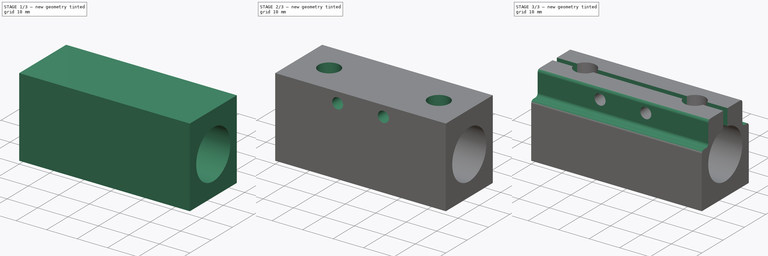
[diagram: build sequence overview — one tinted view per stage of 3, left to right]
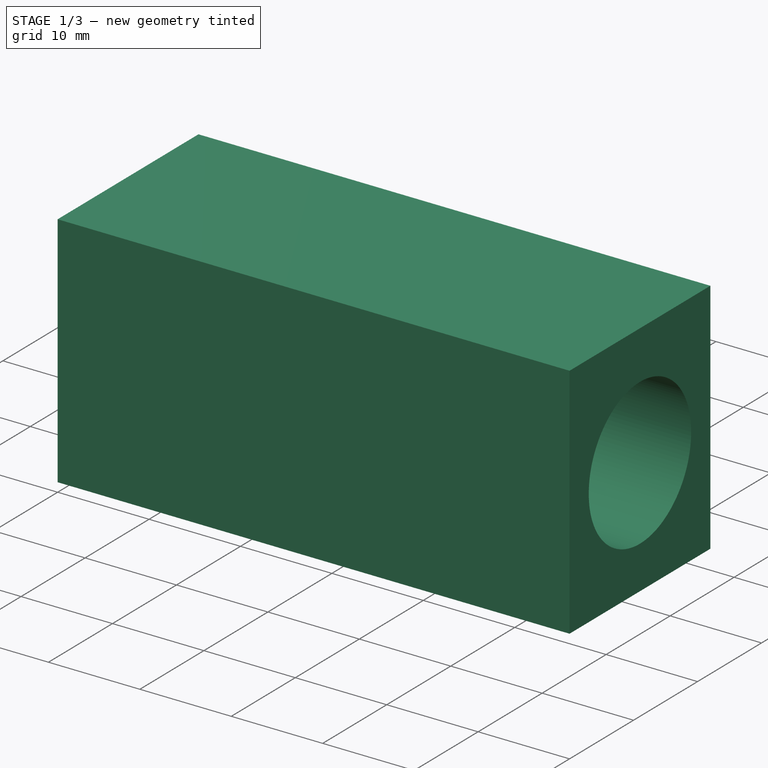
[diagram: stage 1 of 3 — iso view after this stage's code; geometry added in this stage tinted green]
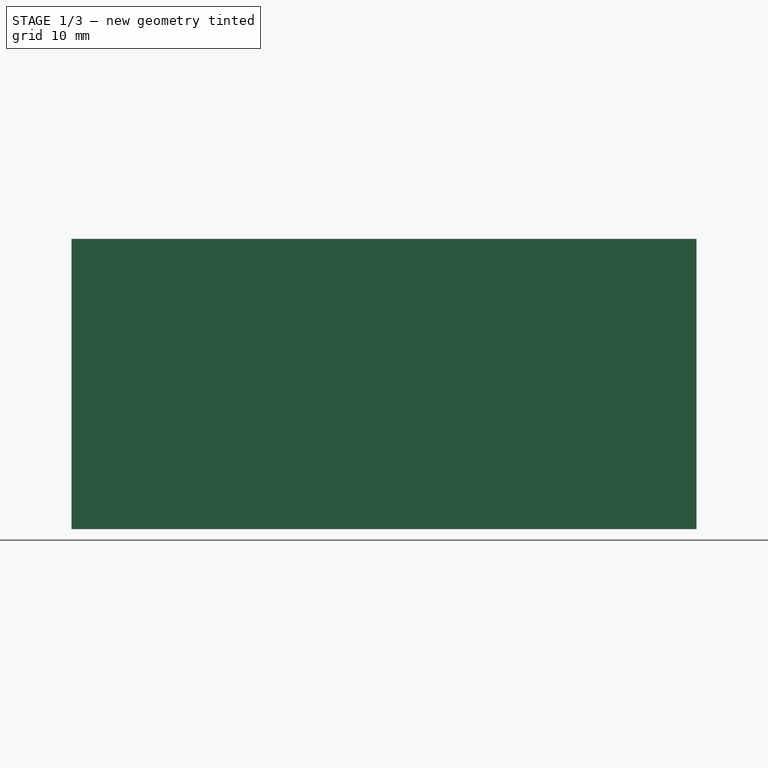
[diagram: stage 1 of 3 — front view after this stage's code; geometry added in this stage tinted green]
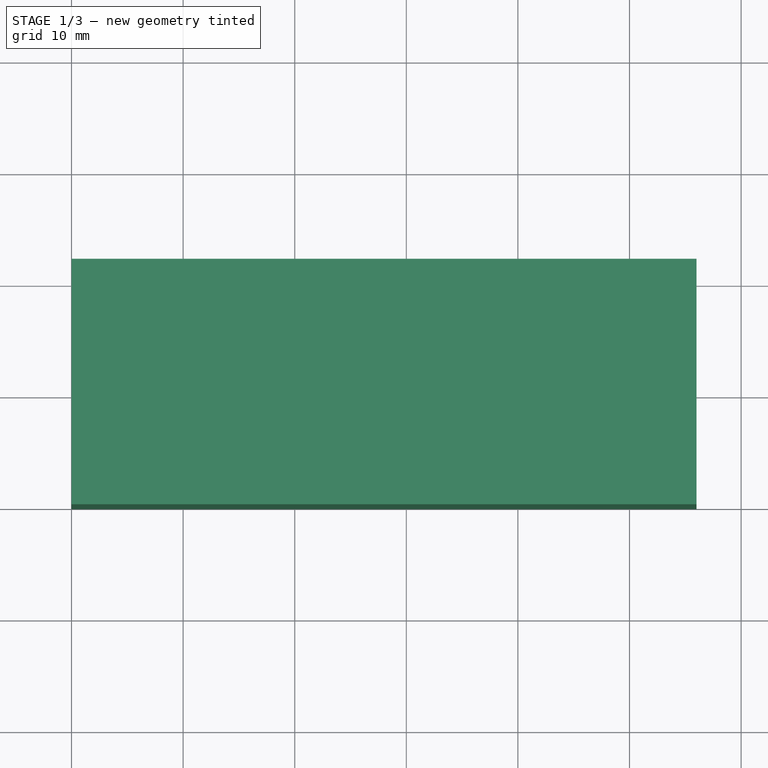
[diagram: stage 1 of 3 — top view after this stage's code; geometry added in this stage tinted green]
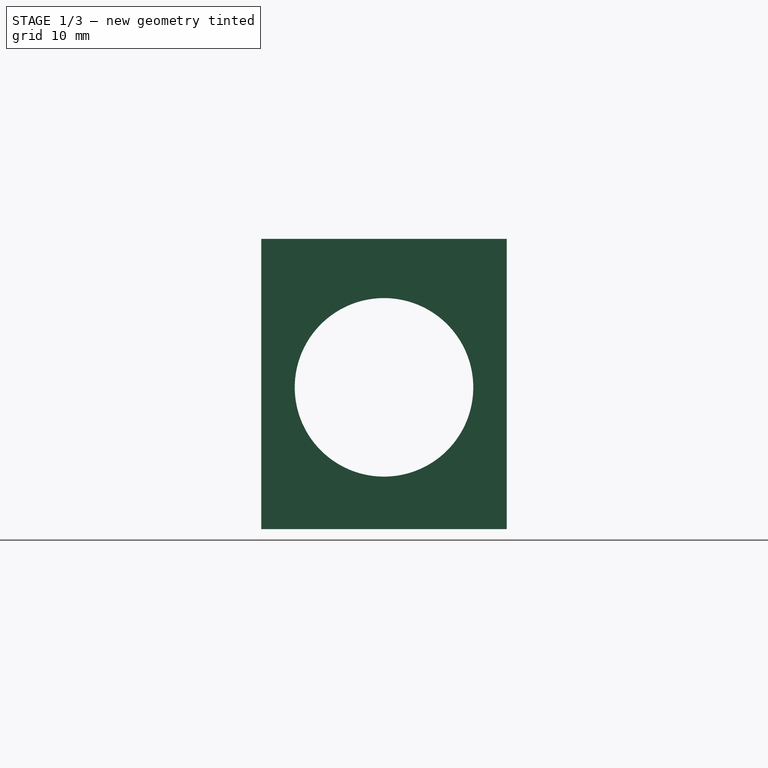
[diagram: stage 1 of 3 — right view after this stage's code; geometry added in this stage tinted green]
FCSTD DOCUMENT  (FreeCAD 0.16R6706 (Git))
Label: Berço Rolmento LM8LUU
License: All rights reserved
LicenseURL: http://en.wikipedia.org/wiki/All_rights_reserved
objects: Sketcher::SketchObject×5, PartDesign::Pocket×5, Part::Box×1, PartDesign::Fillet×1
note: 17 computed .brp shape members not serialized (recipe doc carries the construction recipe); baked Part::Feature solids carry a one-line shape summary decoded from their .brp

FEATURE [Part::Box] Box  label="Cube"
  Height = 26
  Length = 56
  Width = 22
FEATURE [Sketcher::SketchObject] Sketch
  ExternalGeometry = -> [Box]
  Placement = pos=(56,0,0) rot=(0.57735,0.57735,0.57735;2.0944rad)
  Support = -> Box [Face2]
  sketch-geometry (2):
    g0: LineSegment [constr] StartX=11 StartY=12.7 StartZ=0 EndX=11 EndY=0 EndZ=0
    g1: Circle CenterX=11 CenterY=12.7 CenterZ=0 NormalX=0 NormalY=0 NormalZ=1 Radius=8
  constraints (5):
    c: Vertical(g0)
    c: Symmetric(g-1,g-3,g0)
    c: DistanceY(g0,g0) = 12.7
    c: Radius(g1) = 8
    c: Coincident(g1,g0)
FEATURE [PartDesign::Pocket] Pocket
  Length = 5
  Sketch = -> Sketch
  Type = 1
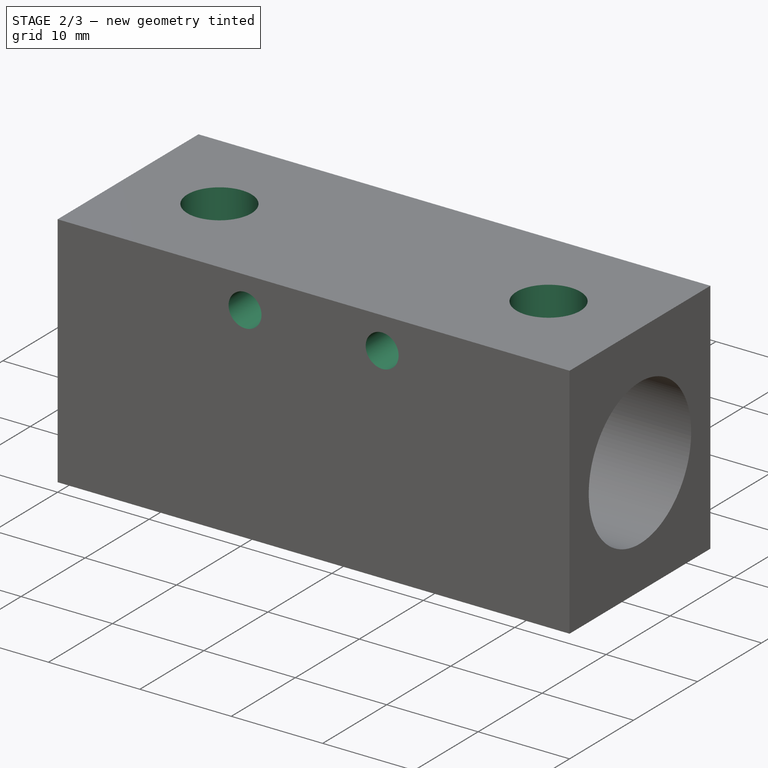
[diagram: stage 2 of 3 — iso view after this stage's code; geometry added in this stage tinted green]
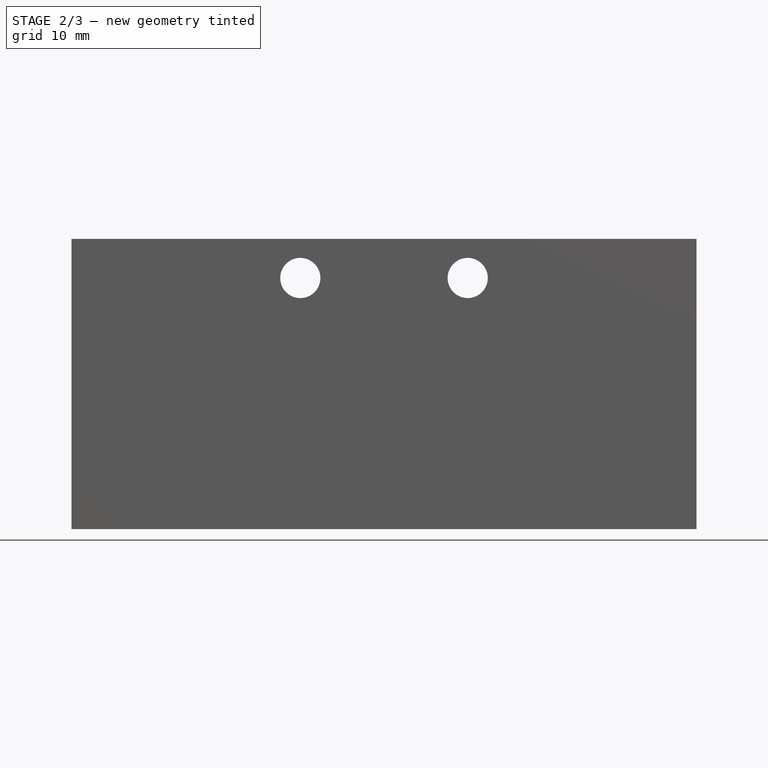
[diagram: stage 2 of 3 — front view after this stage's code; geometry added in this stage tinted green]
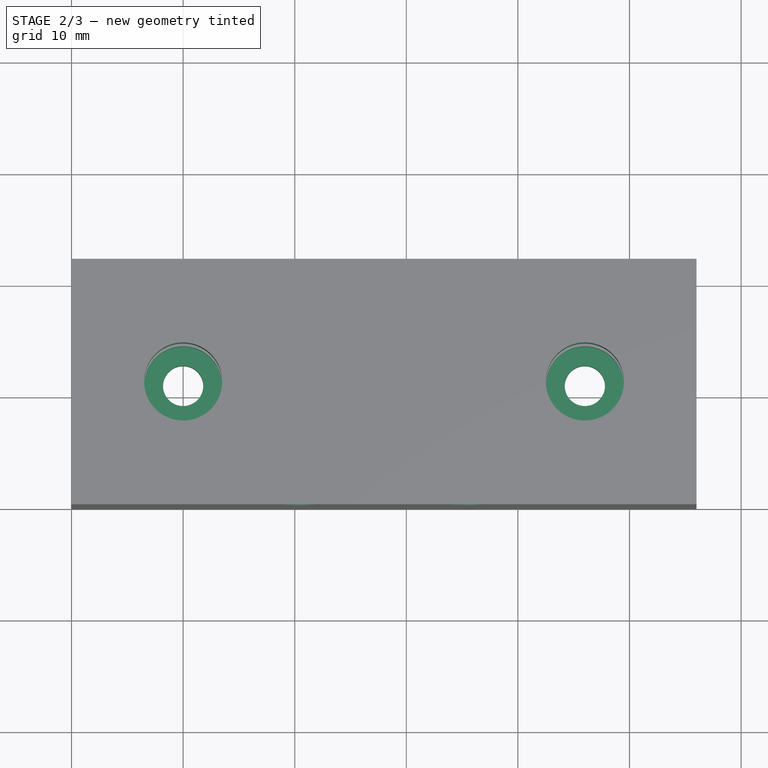
[diagram: stage 2 of 3 — top view after this stage's code; geometry added in this stage tinted green]
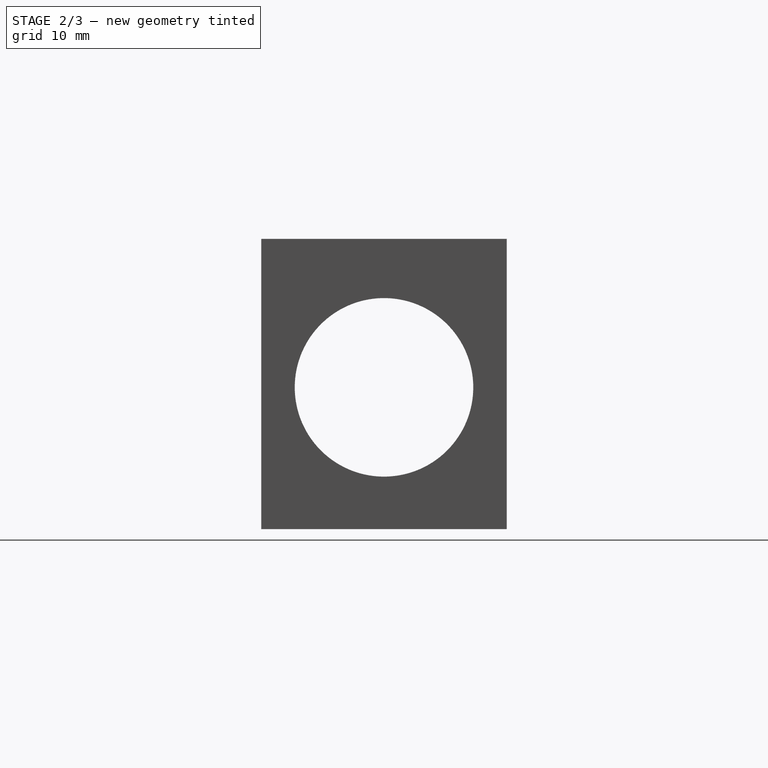
[diagram: stage 2 of 3 — right view after this stage's code; geometry added in this stage tinted green]
FEATURE [Sketcher::SketchObject] Sketch001
  ExternalGeometry = -> [Pocket]
  Placement = pos=(0,0,26) rot=(0,0,1;0rad)
  Support = -> Pocket [Face3]
  sketch-geometry (4):
    g0: LineSegment [constr] StartX=0 StartY=11 StartZ=0 EndX=10 EndY=11 EndZ=0
    g1: LineSegment [constr] StartX=46 StartY=11 StartZ=0 EndX=56 EndY=11 EndZ=0
    g2: Circle CenterX=10 CenterY=11 CenterZ=0 NormalX=0 NormalY=0 NormalZ=1 Radius=3.5
    g3: Circle CenterX=46 CenterY=11 CenterZ=0 NormalX=0 NormalY=0 NormalZ=1 Radius=3.5
  constraints (11):
    c: Horizontal(g1)
    c: Horizontal(g0)
    c: DistanceX(g0,g0) = 10
    c: DistanceX(g1,g1) = 10
    c: Symmetric(g-4,g-4,g1)
    c: Symmetric(g-3,g-1,g0)
    c: Radius(g2) = 3.5
    c: Coincident(g0,g2)
    c: Equal(g2,g3)
    c: Coincident(g3,g1)
    c: DistanceX(g0,g1) = 36
FEATURE [PartDesign::Pocket] Pocket001
  Length = 23
  Sketch = -> Sketch001
  Type = 0
FEATURE [Sketcher::SketchObject] Sketch002
  ExternalGeometry = -> [Pocket001]
  Placement = pos=(0,0,0) rot=(1,0,0;3.14159rad)
  Support = -> Pocket001 [Face4]
  sketch-geometry (4):
    g0: LineSegment [constr] StartX=0 StartY=-11 StartZ=0 EndX=10 EndY=-11 EndZ=0
    g1: LineSegment [constr] StartX=46 StartY=-11 StartZ=0 EndX=56 EndY=-11 EndZ=0
    g2: Circle CenterX=10 CenterY=-11 CenterZ=0 NormalX=0 NormalY=0 NormalZ=1 Radius=1.8
    g3: Circle CenterX=46 CenterY=-11 CenterZ=0 NormalX=0 NormalY=0 NormalZ=1 Radius=1.8
  constraints (10):
    c: Horizontal(g0)
    c: Horizontal(g1)
    c: DistanceX(g0,g0) = 10
    c: Equal(g0,g1)
    c: Symmetric(g-4,g-4,g1)
    c: Symmetric(g-1,g-3,g0)
    c: Radius(g2) = 1.8
    c: Equal(g2,g3)
    c: Coincident(g0,g2)
    c: Coincident(g3,g1)
FEATURE [PartDesign::Pocket] Pocket002
  Length = 5
  Sketch = -> Sketch002
  Type = 0
FEATURE [Sketcher::SketchObject] Sketch003
  ExternalGeometry = -> [Pocket002]
  Placement = pos=(0,22,0) rot=(0,0.707107,0.707107;3.14159rad)
  Support = -> Pocket002 [Face5]
  sketch-geometry (4):
    g0: LineSegment [constr] StartX=-28 StartY=26 StartZ=0 EndX=-28 EndY=22.5 EndZ=0
    g1: LineSegment [constr] StartX=-35.5 StartY=22.5 StartZ=0 EndX=-20.5 EndY=22.5 EndZ=0
    g2: Circle CenterX=-35.5 CenterY=22.5 CenterZ=0 NormalX=0 NormalY=0 NormalZ=1 Radius=1.8
    g3: Circle CenterX=-20.5 CenterY=22.5 CenterZ=0 NormalX=0 NormalY=0 NormalZ=1 Radius=1.8
  constraints (10):
    c: Vertical(g0)
    c: DistanceY(g0,g0) = 3.5
    c: Symmetric(g-3,g-3,g0)
    c: Horizontal(g1)
    c: DistanceX(g1,g1) = 15
    c: Symmetric(g1,g1,g0)
    c: Radius(g2) = 1.8
    c: Equal(g2,g3) = 1.8
    c: Coincident(g1,g3)
    c: Coincident(g2,g1)
FEATURE [PartDesign::Pocket] Pocket003
  Length = 5
  Sketch = -> Sketch003
  Type = 1
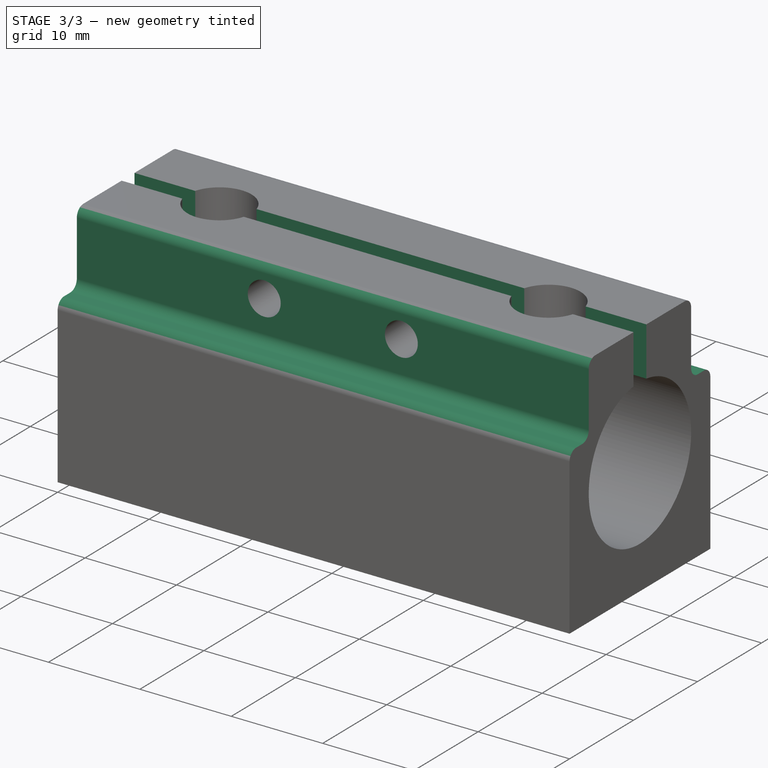
[diagram: stage 3 of 3 — iso view after this stage's code; geometry added in this stage tinted green]
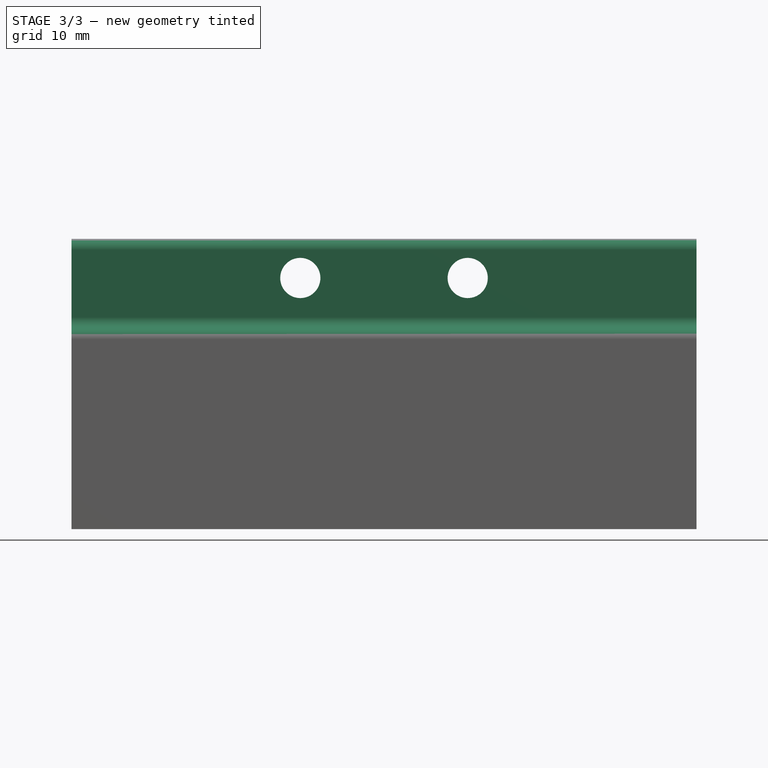
[diagram: stage 3 of 3 — front view after this stage's code; geometry added in this stage tinted green]
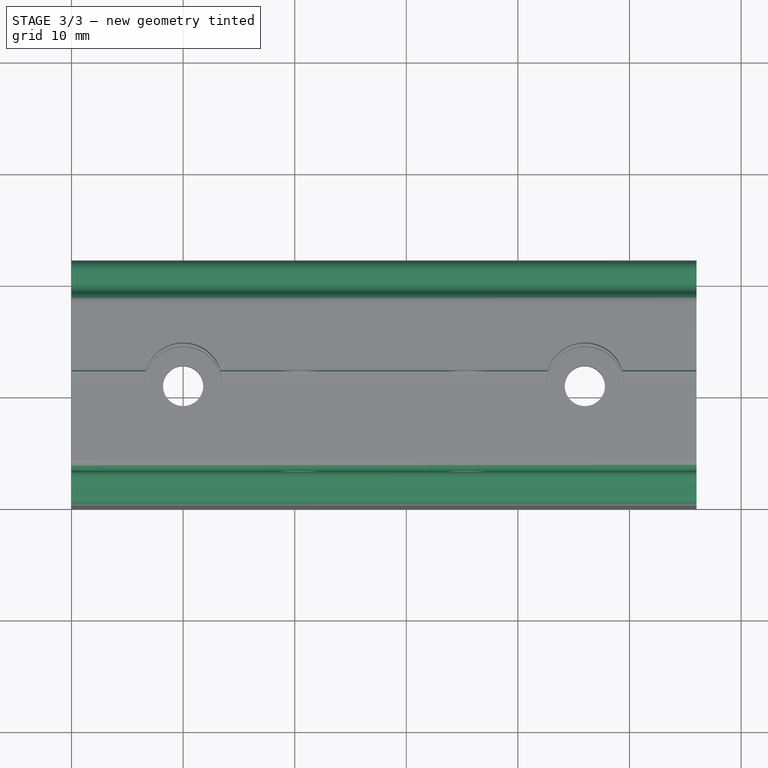
[diagram: stage 3 of 3 — top view after this stage's code; geometry added in this stage tinted green]
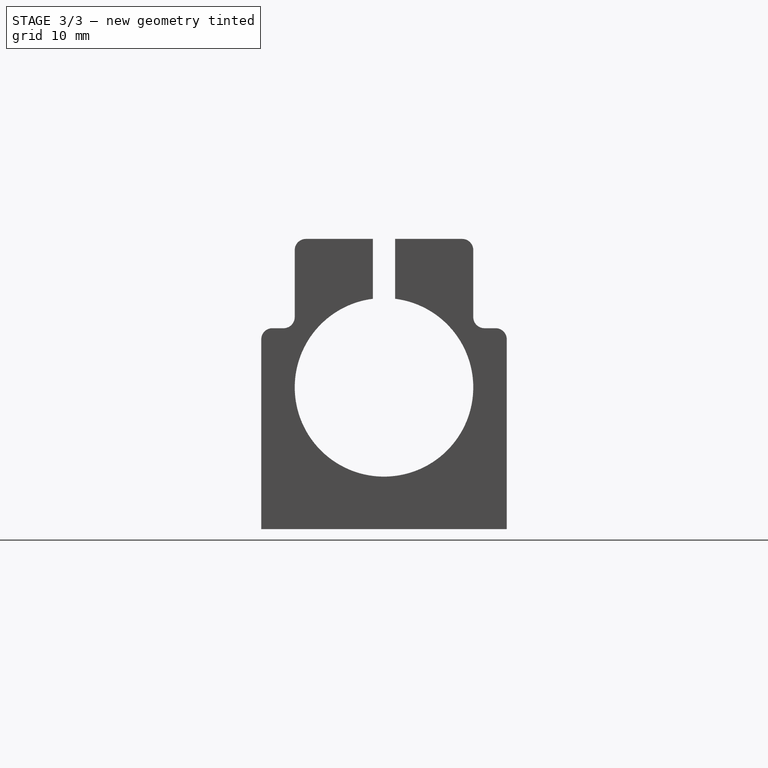
[diagram: stage 3 of 3 — right view after this stage's code; geometry added in this stage tinted green]
FEATURE [Sketcher::SketchObject] Sketch004
  ExternalGeometry = -> [Pocket003]
  Placement = pos=(56,0,0) rot=(0.57735,0.57735,0.57735;2.0944rad)
  Support = -> Pocket003 [Face7]
  sketch-geometry (13):
    g0: LineSegment StartX=10 StartY=29.3969 StartZ=0 EndX=12 EndY=29.3969 EndZ=0
    g1: LineSegment StartX=12 StartY=29.3969 StartZ=0 EndX=12 EndY=18.0981 EndZ=0
    g2: LineSegment StartX=12 StartY=18.0981 StartZ=0 EndX=10 EndY=18.0981 EndZ=0
    g3: LineSegment StartX=10 StartY=18.0981 StartZ=0 EndX=10 EndY=29.3969 EndZ=0
    g4: LineSegment [constr] StartX=11 StartY=26 StartZ=0 EndX=11 EndY=20.2061 EndZ=0
    g5: LineSegment StartX=0 StartY=26 StartZ=0 EndX=3 EndY=26 EndZ=0
    g6: LineSegment StartX=3 StartY=26 StartZ=0 EndX=3 EndY=18 EndZ=0
    g7: LineSegment StartX=3 StartY=18 StartZ=0 EndX=0 EndY=18 EndZ=0
    g8: LineSegment StartX=0 StartY=18 StartZ=0 EndX=0 EndY=26 EndZ=0
    g9: LineSegment StartX=19 StartY=26 StartZ=0 EndX=22 EndY=26 EndZ=0
    g10: LineSegment StartX=22 StartY=26 StartZ=0 EndX=22 EndY=18 EndZ=0
    g11: LineSegment StartX=22 StartY=18 StartZ=0 EndX=19 EndY=18 EndZ=0
    g12: LineSegment StartX=19 StartY=18 StartZ=0 EndX=19 EndY=26 EndZ=0
  constraints (22):
    c: Coincident(g5,g6)
    c: Coincident(g6,g7)
    c: Coincident(g7,g8)
    c: Coincident(g8,g5)
    c: Horizontal(g5)
    c: Horizontal(g7)
    c: Vertical(g6)
    c: Vertical(g8)
    c: DistanceY(g8,g8) = 8
    c: DistanceX(g5,g5) = 3
    c: Coincident(g9,g10)
    c: Coincident(g10,g11)
    c: Coincident(g11,g12)
    c: Coincident(g12,g9)
    c: Horizontal(g9)
    c: Horizontal(g11)
    c: Vertical(g10)
    c: Vertical(g12)
    c: Equal(g8,g12) = 10
    c: Equal(g5,g9) = 2
    c: Coincident(g5,g-5)
    c: Coincident(g9,g-4)
FEATURE [PartDesign::Pocket] Pocket004
  Length = 5
  Sketch = -> Sketch004
  Type = 1
FEATURE [PartDesign::Fillet] Fillet
  Base = -> Pocket004 [Edge15,Edge18,Edge20,Edge57,Edge64,Edge68]
  Radius = 1
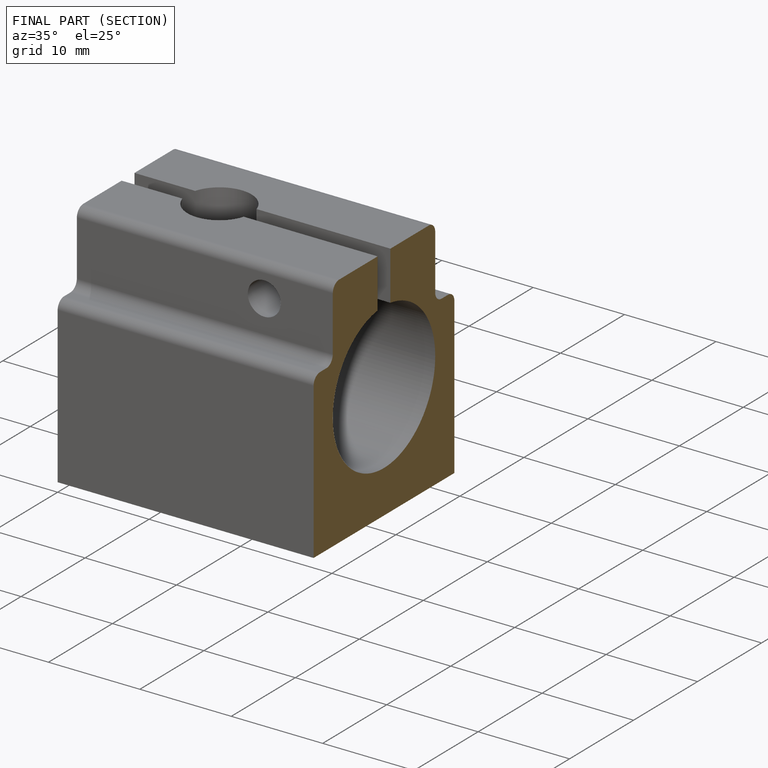
[diagram: finished part — half-section view (interior)]
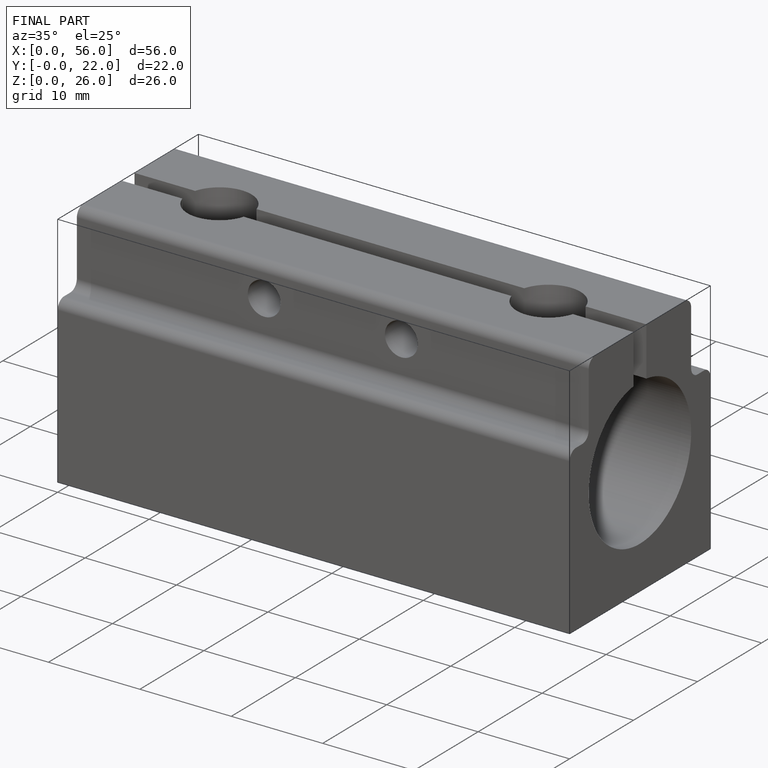
[diagram: finished part — iso view with bounding-box wireframe]
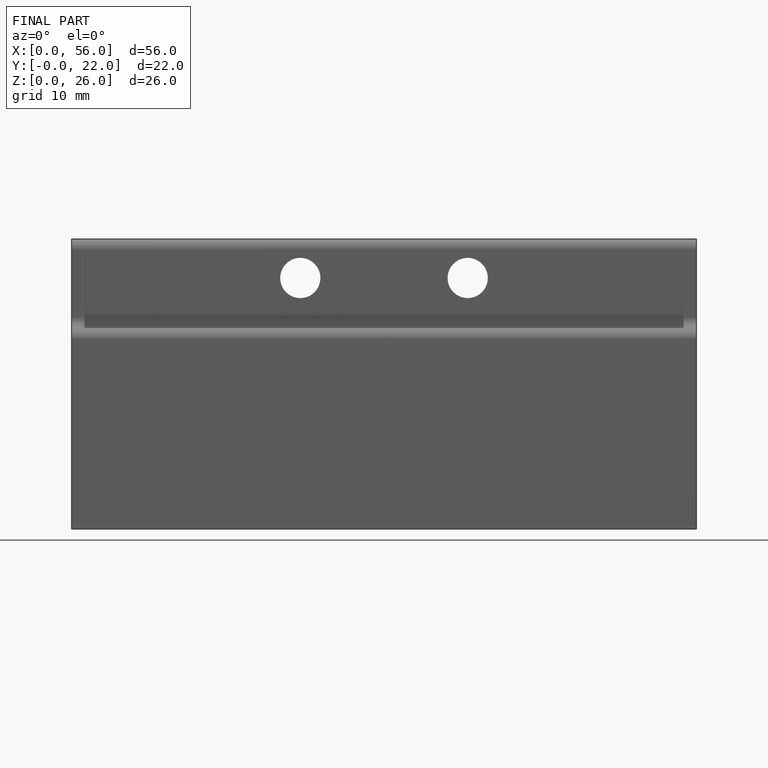
[diagram: finished part — front view with bounding-box wireframe]
